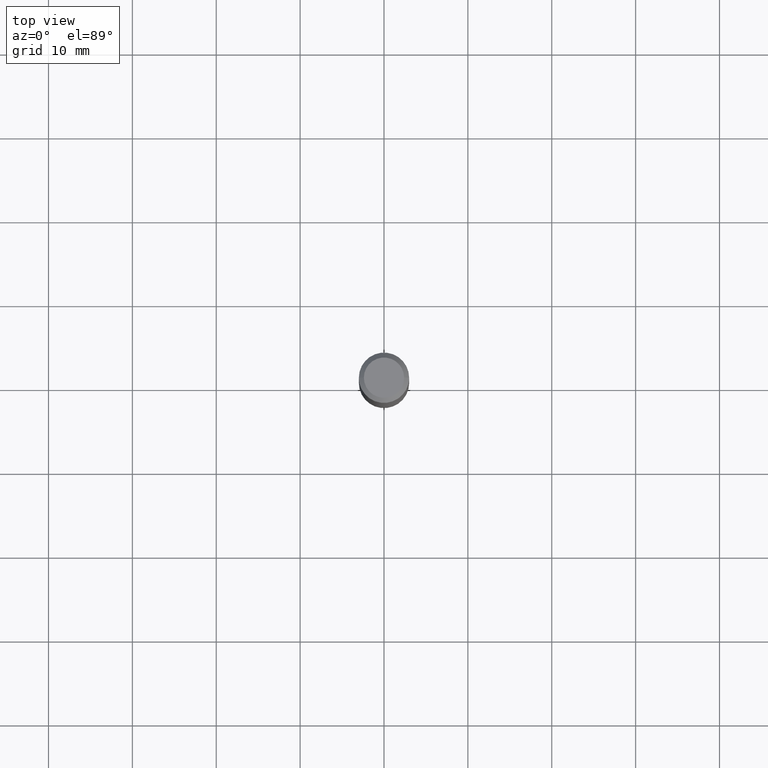
[diagram: clean part render]
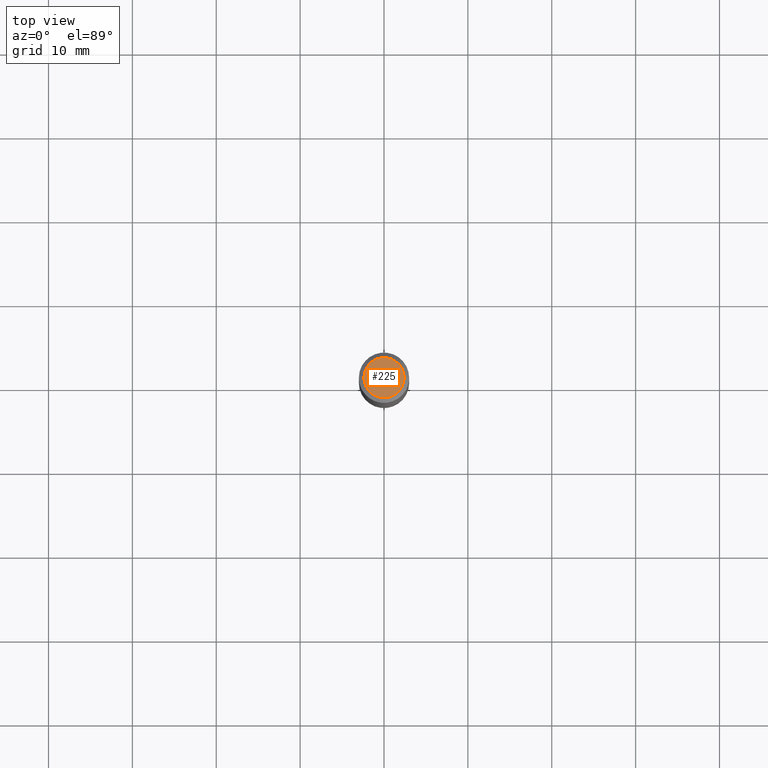
[diagram: same view with one face highlighted and labeled with its STEP entity id]
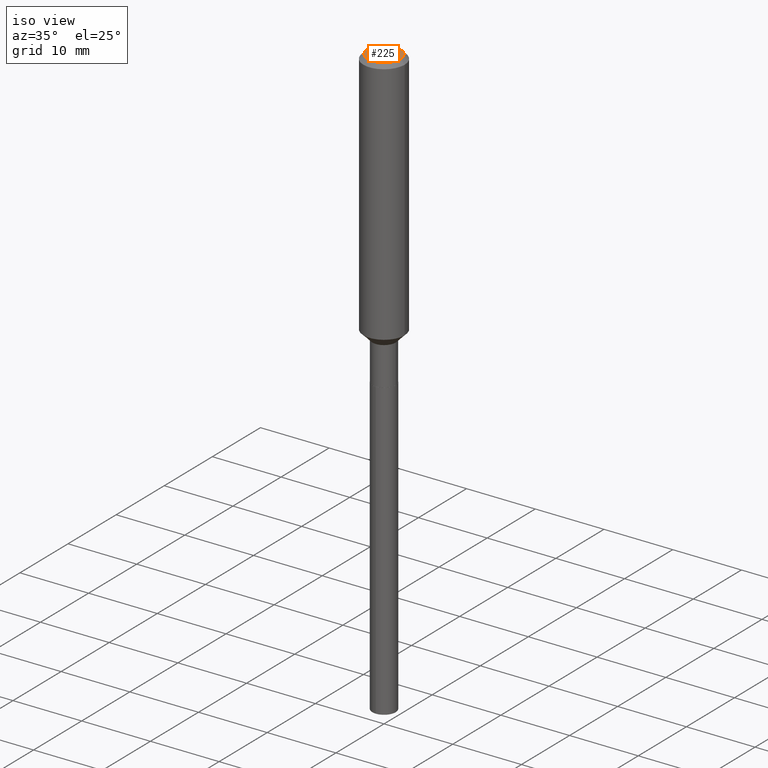
[diagram: same view with one face highlighted and labeled with its STEP entity id]
A machine part, top view. The second image highlights one B-rep face of the part: STEP entity #225.
A second angle (iso view) of the same face is appended — the face is thin or edge-on in the first view.
In plain terms, the highlighted planar face has unit normal (0, -0, -1).
Its self-contained STEP definition (entity closure, byte-faithful):
#4 = DIRECTION ( 'NONE',  ( -2.445468806185136597E-29, 3.491481338843145583E-15, 1.000000000000000000 ) ) ;
#19 = AXIS2_PLACEMENT_3D ( 'NONE', #185, #4, #112 ) ;
#30 = PLANE ( 'NONE',  #159 ) ;
#31 = DIRECTION ( 'NONE',  ( -1.000000000000000000, 6.982962677686265922E-15, -4.876176775795935793E-29 ) ) ;
#36 = DIRECTION ( 'NONE',  ( 1.000000000000000000, -6.982962677686267499E-15, 4.875432709231658792E-29 ) ) ;
#100 = VERTEX_POINT ( 'NONE', #127 ) ;
#103 = DIRECTION ( 'NONE',  ( 2.438088387897960049E-29, -3.491481338843145188E-15, -1.000000000000000000 ) ) ;
#112 = DIRECTION ( 'NONE',  ( 1.000000000000000000, -6.982962677686267499E-15, 4.875432709231658792E-29 ) ) ;
#127 = CARTESIAN_POINT ( 'NONE',  ( -0.09447999999999998066, 7.009847083995354710E-16, -1.928573779297727792E-17 ) ) ;
#159 = AXIS2_PLACEMENT_3D ( 'NONE', #209, #103, #31 ) ;
#166 = ORIENTED_EDGE ( 'NONE', *, *, #288, .T. ) ;
#185 = CARTESIAN_POINT ( 'NONE',  ( 4.716267017698007905E-46, -6.733579360998555036E-32, -1.928573779297252010E-17 ) ) ;
#209 = CARTESIAN_POINT ( 'NONE',  ( 2.358133508849003952E-46, -3.366789680499277518E-32, -9.642868896486260050E-18 ) ) ;
#225 = ADVANCED_FACE ( 'NONE', ( #290 ), #30, .F. ) ;
#281 = CIRCLE ( 'NONE', #418, 0.09447999999999998066 ) ;
#288 = EDGE_CURVE ( 'NONE', #363, #100, #281, .T. ) ;
#290 = FACE_OUTER_BOUND ( 'NONE', #400, .T. ) ;
#299 = EDGE_CURVE ( 'NONE', #100, #363, #318, .T. ) ;
#302 = CARTESIAN_POINT ( 'NONE',  ( 4.716267017698007905E-46, -6.733579360998555036E-32, -1.928573779297252010E-17 ) ) ;
#318 = CIRCLE ( 'NONE', #19, 0.09447999999999998066 ) ;
#353 = DIRECTION ( 'NONE',  ( -2.445468806185136597E-29, 3.491481338843145583E-15, 1.000000000000000000 ) ) ;
#363 = VERTEX_POINT ( 'NONE', #439 ) ;
#364 = ORIENTED_EDGE ( 'NONE', *, *, #299, .T. ) ;
#400 = EDGE_LOOP ( 'NONE', ( #364, #166 ) ) ;
#418 = AXIS2_PLACEMENT_3D ( 'NONE', #302, #353, #36 ) ;
#439 = CARTESIAN_POINT ( 'NONE',  ( 0.09447999999999998066, -7.704367267948738690E-16, -1.928573779296752193E-17 ) ) ;